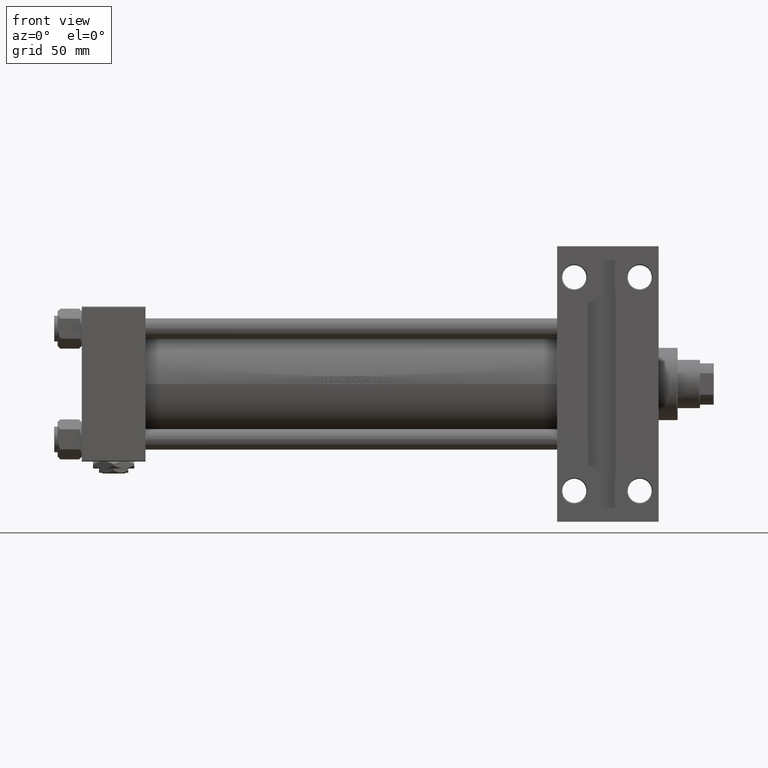
[diagram: clean part render]
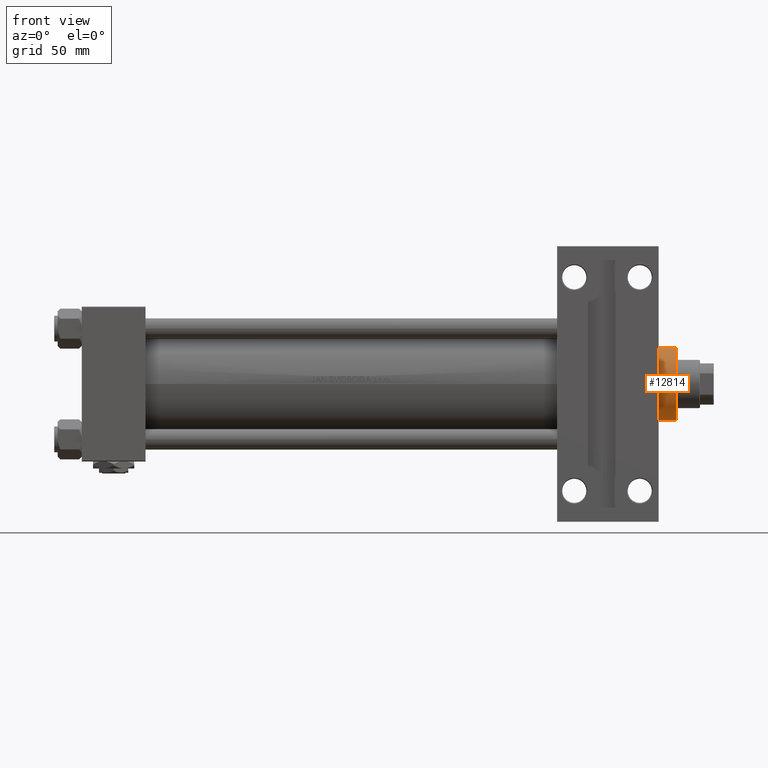
[diagram: same view with one face highlighted and labeled with its STEP entity id]
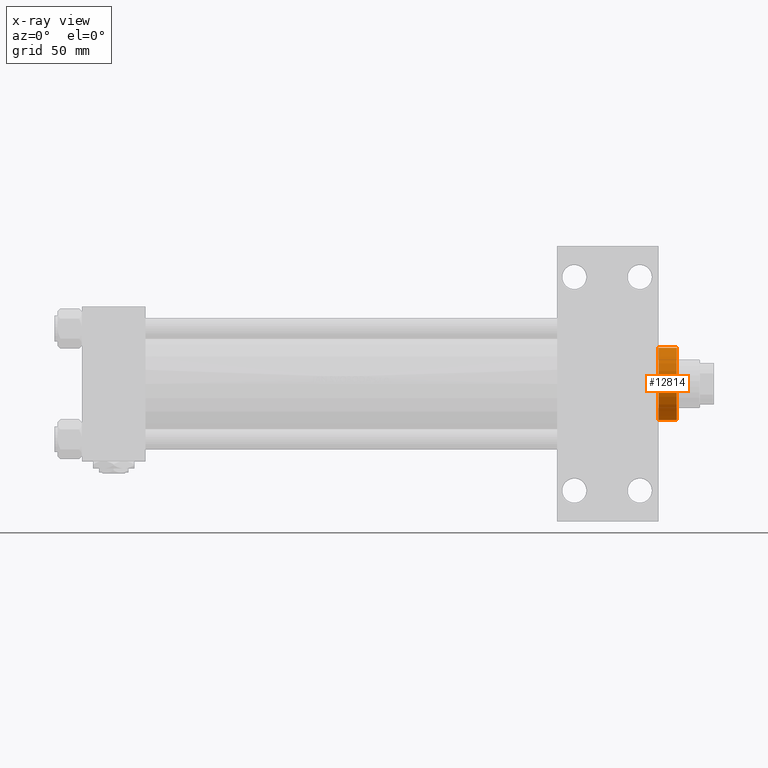
[diagram: x-ray of the same camera — body ghosted, the highlighted face saturated]
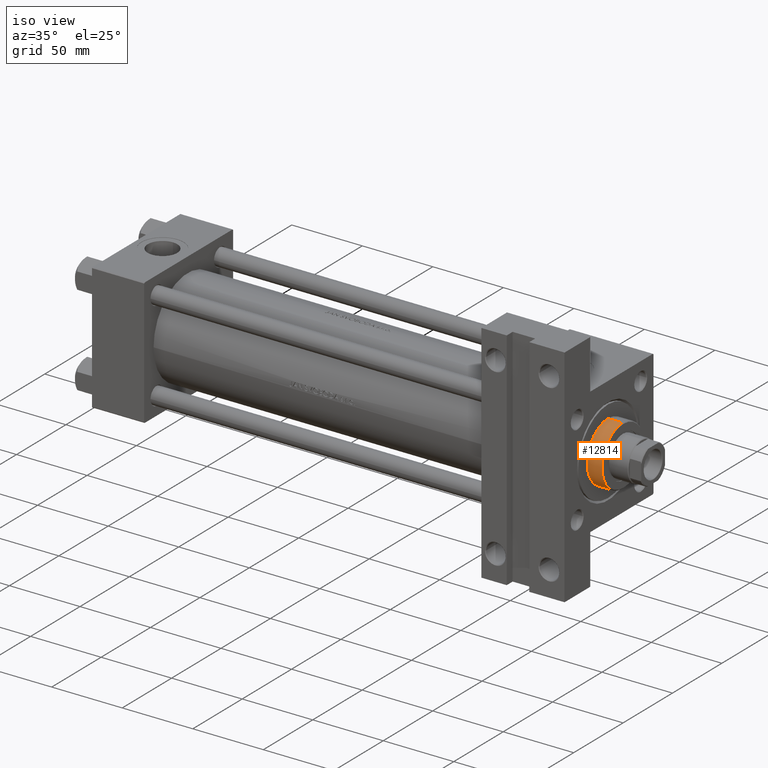
[diagram: same view with one face highlighted and labeled with its STEP entity id]
A machine part, front view. The second image highlights one B-rep face of the part: STEP entity #12814.
The next image is the same camera in x-ray: the body ghosted, the highlighted face saturated — about 0% of this face is hidden behind the body in this view.
A second angle (iso view) of the same face is appended — the face is thin or edge-on in the first view.
In plain terms, the highlighted cylindrical surface (edge-blend (fillet) strip) has radius 21 mm, axis along (-1, 0, 0).
Its self-contained STEP definition (entity closure, byte-faithful):
#359 = EDGE_CURVE ( 'NONE', #3357, #17220, #712, .T. ) ;
#712 = LINE ( 'NONE', #8742, #15887 ) ;
#715 = AXIS2_PLACEMENT_3D ( 'NONE', #26618, #7518, #22831 ) ;
#1167 = LINE ( 'NONE', #4931, #18327 ) ;
#1777 = EDGE_CURVE ( 'NONE', #32804, #3027, #1167, .T. ) ;
#3027 = VERTEX_POINT ( 'NONE', #28610 ) ;
#3277 = AXIS2_PLACEMENT_3D ( 'NONE', #49546, #15086, #22855 ) ;
#3357 = VERTEX_POINT ( 'NONE', #31467 ) ;
#3929 = FACE_OUTER_BOUND ( 'NONE', #43159, .T. ) ;
#4931 = CARTESIAN_POINT ( 'NONE',  ( -21.00000000000000000, 0.000000000000000000, 39.69999999999999574 ) ) ;
#4983 = AXIS2_PLACEMENT_3D ( 'NONE', #26806, #46914, #38644 ) ;
#6534 = CARTESIAN_POINT ( 'NONE',  ( 21.00000000000000000, 2.571758278209441661E-15, 28.69999999999999929 ) ) ;
#7518 = DIRECTION ( 'NONE',  ( 0.000000000000000000, 0.000000000000000000, 1.000000000000000000 ) ) ;
#8742 = CARTESIAN_POINT ( 'NONE',  ( 21.00000000000000000, 2.571758278209441661E-15, 39.69999999999999574 ) ) ;
#9700 = ORIENTED_EDGE ( 'NONE', *, *, #31042, .T. ) ;
#12814 = ADVANCED_FACE ( 'NONE', ( #3929 ), #15503, .T. ) ;
#15086 = DIRECTION ( 'NONE',  ( 0.000000000000000000, 0.000000000000000000, -1.000000000000000000 ) ) ;
#15503 = CYLINDRICAL_SURFACE ( 'NONE', #4983, 21.00000000000000000 ) ;
#15887 = VECTOR ( 'NONE', #46735, 1000.000000000000000 ) ;
#16748 = CIRCLE ( 'NONE', #715, 21.00000000000000000 ) ;
#17220 = VERTEX_POINT ( 'NONE', #6534 ) ;
#18327 = VECTOR ( 'NONE', #43652, 1000.000000000000000 ) ;
#22831 = DIRECTION ( 'NONE',  ( 1.000000000000000000, 0.000000000000000000, 0.000000000000000000 ) ) ;
#22855 = DIRECTION ( 'NONE',  ( 1.000000000000000000, 0.000000000000000000, 0.000000000000000000 ) ) ;
#26618 = CARTESIAN_POINT ( 'NONE',  ( 0.000000000000000000, 0.000000000000000000, 28.69999999999999929 ) ) ;
#26806 = CARTESIAN_POINT ( 'NONE',  ( 0.000000000000000000, 0.000000000000000000, 39.69999999999999574 ) ) ;
#28610 = CARTESIAN_POINT ( 'NONE',  ( -21.00000000000000000, 0.000000000000000000, 28.69999999999999929 ) ) ;
#31042 = EDGE_CURVE ( 'NONE', #17220, #3027, #16748, .T. ) ;
#31467 = CARTESIAN_POINT ( 'NONE',  ( 21.00000000000000000, 2.571758278209441661E-15, 39.19999999999999574 ) ) ;
#32479 = ORIENTED_EDGE ( 'NONE', *, *, #34910, .T. ) ;
#32804 = VERTEX_POINT ( 'NONE', #33498 ) ;
#33498 = CARTESIAN_POINT ( 'NONE',  ( -21.00000000000000000, 0.000000000000000000, 39.19999999999999574 ) ) ;
#34910 = EDGE_CURVE ( 'NONE', #32804, #3357, #41008, .T. ) ;
#38644 = DIRECTION ( 'NONE',  ( -1.000000000000000000, 0.000000000000000000, 0.000000000000000000 ) ) ;
#41008 = CIRCLE ( 'NONE', #3277, 21.00000000000000000 ) ;
#41650 = ORIENTED_EDGE ( 'NONE', *, *, #1777, .F. ) ;
#43159 = EDGE_LOOP ( 'NONE', ( #32479, #46813, #9700, #41650 ) ) ;
#43652 = DIRECTION ( 'NONE',  ( -0.000000000000000000, -0.000000000000000000, -1.000000000000000000 ) ) ;
#46735 = DIRECTION ( 'NONE',  ( -0.000000000000000000, -0.000000000000000000, -1.000000000000000000 ) ) ;
#46813 = ORIENTED_EDGE ( 'NONE', *, *, #359, .T. ) ;
#46914 = DIRECTION ( 'NONE',  ( -0.000000000000000000, -0.000000000000000000, -1.000000000000000000 ) ) ;
#49546 = CARTESIAN_POINT ( 'NONE',  ( 0.000000000000000000, 0.000000000000000000, 39.19999999999999574 ) ) ;